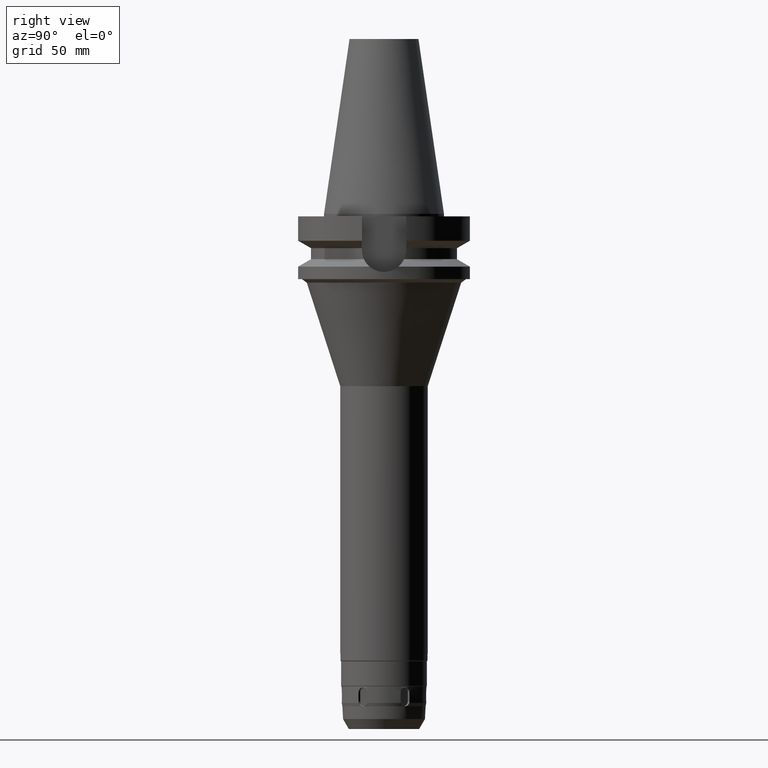
[diagram: clean part render]
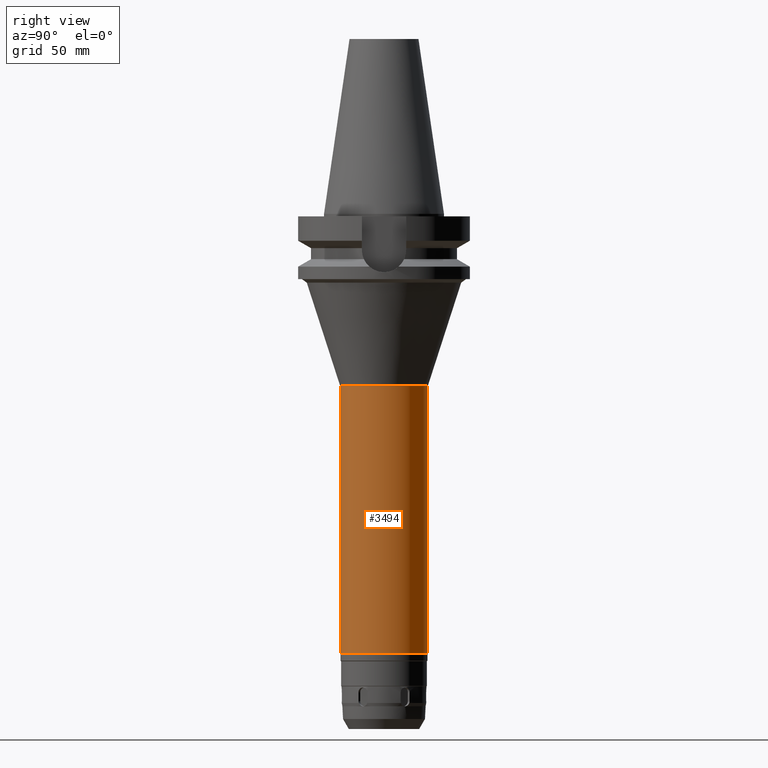
[diagram: same view with one face highlighted and labeled with its STEP entity id]
A machine part, right view. The second image highlights one B-rep face of the part: STEP entity #3494.
In plain terms, the highlighted cylindrical surface (partial cylindrical patch) has radius 25.5 mm, axis along (0, 0, -1).
Its self-contained STEP definition (entity closure, byte-faithful):
#1262=CARTESIAN_POINT('',(0.E0,2.717368782628E-14,-2.562E2));
#1263=DIRECTION('',(0.E0,0.E0,1.E0));
#1264=DIRECTION('',(0.E0,-1.E0,0.E0));
#1265=AXIS2_PLACEMENT_3D('',#1262,#1263,#1264);
#1294=DIRECTION('',(0.E0,-1.002799547527E-14,-1.E0));
#1295=VECTOR('',#1294,1.55883E2);
#1296=CARTESIAN_POINT('',(0.E0,2.55E1,-1.00317E2));
#1297=LINE('',#1296,#1295);
#1301=DIRECTION('',(0.E0,1.002799547527E-14,-1.E0));
#1302=VECTOR('',#1301,1.55883E2);
#1303=CARTESIAN_POINT('',(0.E0,-2.55E1,-1.00317E2));
#1304=LINE('',#1303,#1302);
#1330=CARTESIAN_POINT('',(0.E0,0.E0,-1.00317E2));
#1331=DIRECTION('',(0.E0,0.E0,-1.E0));
#1332=DIRECTION('',(0.E0,1.E0,0.E0));
#1333=AXIS2_PLACEMENT_3D('',#1330,#1331,#1332);
#2481=CARTESIAN_POINT('',(0.E0,-2.55E1,-2.562E2));
#2482=CARTESIAN_POINT('',(0.E0,2.55E1,-2.562E2));
#2483=VERTEX_POINT('',#2481);
#2484=VERTEX_POINT('',#2482);
#2485=CARTESIAN_POINT('',(0.E0,2.55E1,-1.00317E2));
#2486=VERTEX_POINT('',#2485);
#2487=CARTESIAN_POINT('',(0.E0,-2.55E1,-1.00317E2));
#2488=VERTEX_POINT('',#2487);
#3480=CARTESIAN_POINT('',(0.E0,2.717368782628E-14,1.2189E2));
#3481=DIRECTION('',(0.E0,0.E0,-1.E0));
#3482=DIRECTION('',(0.E0,-1.E0,0.E0));
#3483=AXIS2_PLACEMENT_3D('',#3480,#3481,#3482);
#3484=CYLINDRICAL_SURFACE('',#3483,2.55E1);
#3486=ORIENTED_EDGE('',*,*,#3485,.T.);
#3487=ORIENTED_EDGE('',*,*,#3469,.F.);
#3489=ORIENTED_EDGE('',*,*,#3488,.F.);
#3491=ORIENTED_EDGE('',*,*,#3490,.F.);
#3492=EDGE_LOOP('',(#3486,#3487,#3489,#3491));
#3493=FACE_OUTER_BOUND('',#3492,.F.);
#1266=CIRCLE('',#1265,2.55E1);
#1334=CIRCLE('',#1333,2.55E1);
#3469=EDGE_CURVE('',#2483,#2484,#1266,.T.);
#3485=EDGE_CURVE('',#2486,#2484,#1297,.T.);
#3488=EDGE_CURVE('',#2488,#2483,#1304,.T.);
#3490=EDGE_CURVE('',#2486,#2488,#1334,.T.);
#3494=ADVANCED_FACE('',(#3493),#3484,.T.);